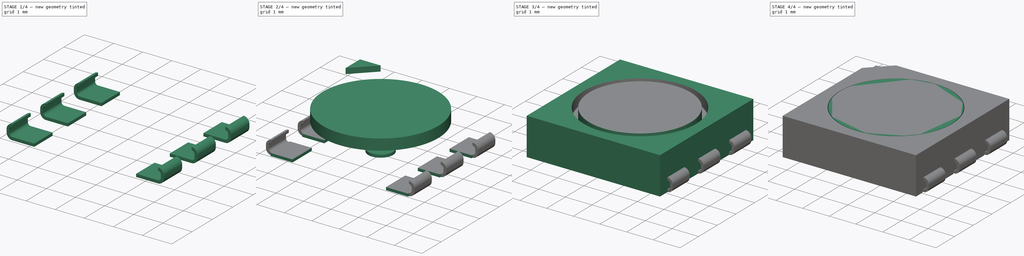
[diagram: build sequence overview — one tinted view per stage of 4, left to right]
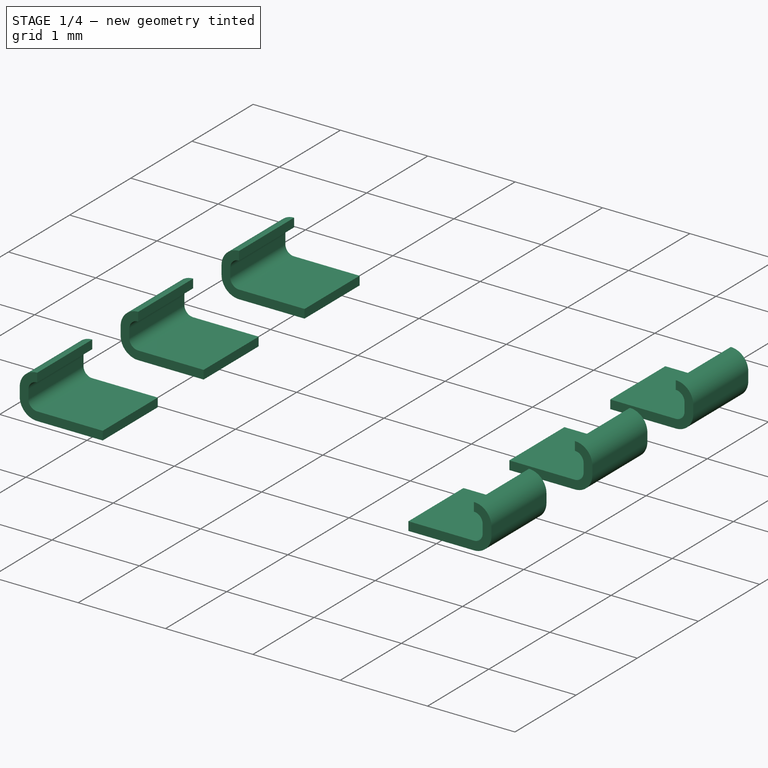
[diagram: stage 1 of 4 — iso view after this stage's code; geometry added in this stage tinted green]
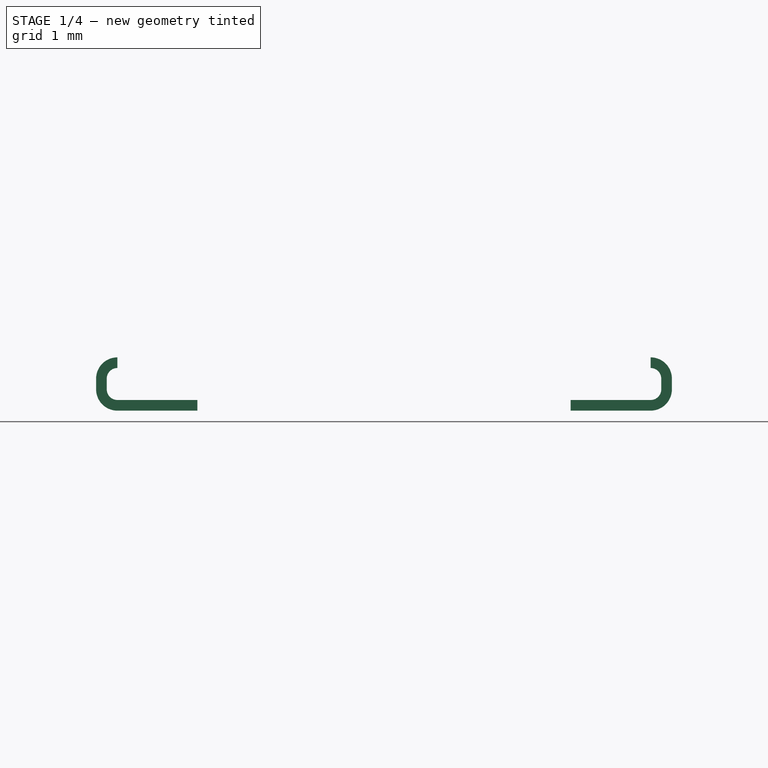
[diagram: stage 1 of 4 — front view after this stage's code; geometry added in this stage tinted green]
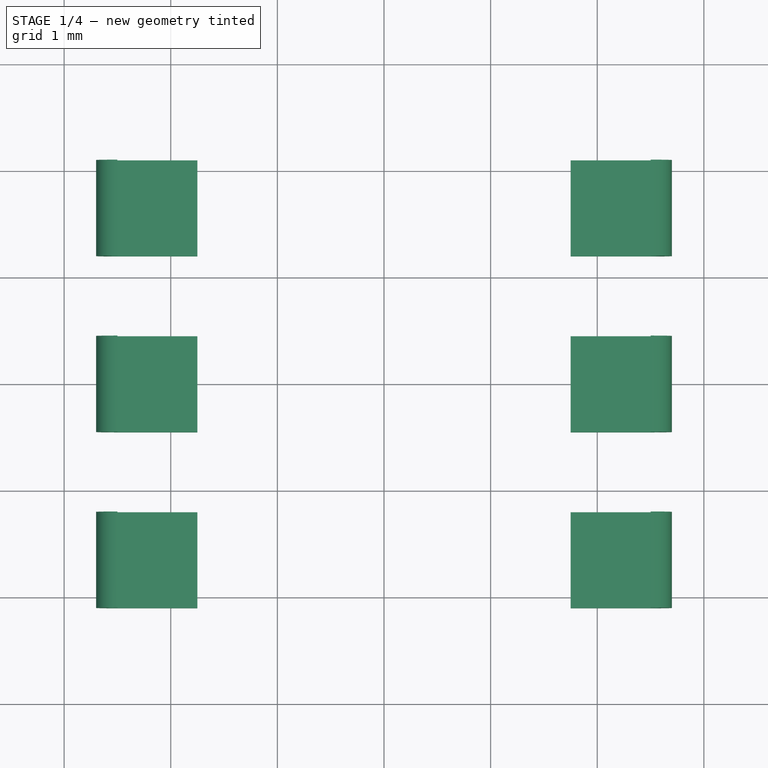
[diagram: stage 1 of 4 — top view after this stage's code; geometry added in this stage tinted green]
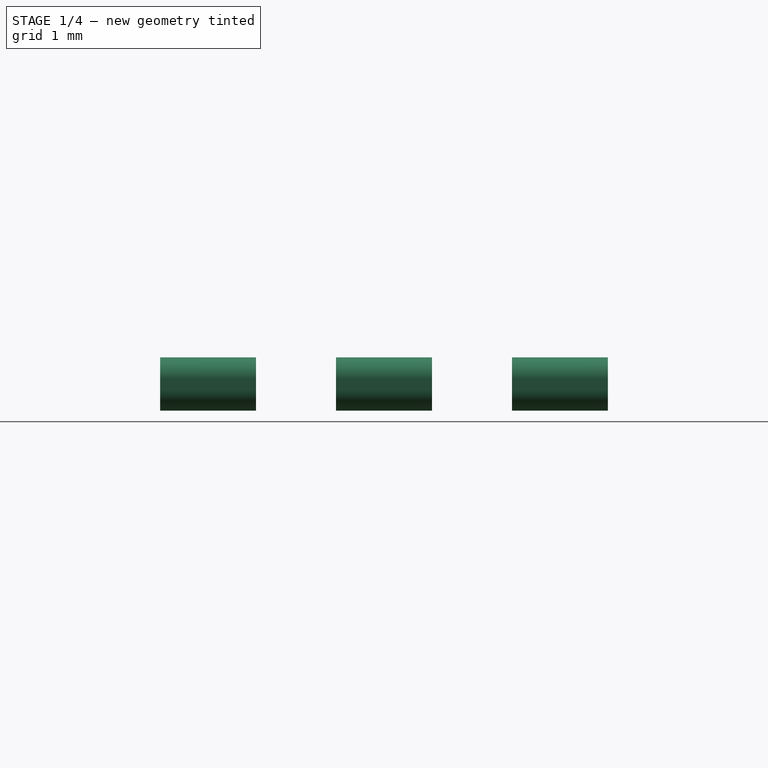
[diagram: stage 1 of 4 — right view after this stage's code; geometry added in this stage tinted green]
FCSTD DOCUMENT  (FreeCAD 0.21R32552 (Git))
Label: HD108-RGB5050
License: All rights reserved
LicenseURL: http://en.wikipedia.org/wiki/All_rights_reserved
objects: Sketcher::SketchObject×5, Part::Extrusion×4, Part::Cut×4, Part::FeaturePython×3, Part::Cylinder×2, Part::MultiFuse×1
note: 19 computed .brp shape members not serialized (recipe doc carries the construction recipe); baked Part::Feature solids carry a one-line shape summary decoded from their .brp

FEATURE [Sketcher::SketchObject] Sketch004  label="MetalTabSideSketch"
  FullyConstrained = true
  Placement = pos=(0,0,0) rot=(1,0,0;1.5708rad)
  expr: Constraints[10] = <<MasterSketch>>.Constraints.plastic_body_x_length / 2
  expr: Constraints[15] = <<MasterSketch>>.Constraints.metal_tab_side_extrusion
  expr: Constraints[33] = <<MasterSketch>>.Constraints.body_tab_length - 0.1 mm / 2
  sketch-geometry (10):
    g0: ArcOfCircle CenterX=-2.5 CenterY=0.3 CenterZ=0 NormalX=0 NormalY=0 NormalZ=1 AngleXU=0 Radius=0.2 StartAngle=1.5708 EndAngle=3.14159
    g1: LineSegment StartX=-2.7 StartY=0.3 StartZ=0 EndX=-2.7 EndY=0.2 EndZ=0
    g2: ArcOfCircle CenterX=-2.5 CenterY=0.2 CenterZ=0 NormalX=0 NormalY=0 NormalZ=1 AngleXU=0 Radius=0.2 StartAngle=3.14159 EndAngle=4.71239
    g3: LineSegment StartX=-2.5 StartY=0 StartZ=0 EndX=-1.75 EndY=0 EndZ=0
    g4: ArcOfCircle CenterX=-2.5 CenterY=0.3 CenterZ=0 NormalX=0 NormalY=0 NormalZ=1 AngleXU=0 Radius=0.1 StartAngle=1.5708 EndAngle=3.14159
    g5: LineSegment StartX=-2.5 StartY=0.4 StartZ=0 EndX=-2.5 EndY=0.5 EndZ=0
    g6: ArcOfCircle CenterX=-2.5 CenterY=0.2 CenterZ=0 NormalX=0 NormalY=0 NormalZ=1 AngleXU=0 Radius=0.1 StartAngle=3.14159 EndAngle=4.71239
    g7: LineSegment StartX=-2.6 StartY=0.2 StartZ=0 EndX=-2.6 EndY=0.3 EndZ=0
    g8: LineSegment StartX=-2.5 StartY=0.1 StartZ=0 EndX=-1.75 EndY=0.1 EndZ=0
    g9: LineSegment StartX=-1.75 StartY=0.1 StartZ=0 EndX=-1.75 EndY=0 EndZ=0
  constraints (35):
    c: Coincident(g1,g0)
    c: Vertical(g1)
    c: Coincident(g2,g1)
    c: Horizontal(g3)
    c: Vertical(g0,g0)
    c: Vertical(g2,g2)
    c: Coincident(g2,g3)
    c: Horizontal(g1,g2)
    c: Vertical(g2,g0)
    c: Horizontal(g3,g-1)
    c: DistanceX(g2,g-1) = 2.5
    c: DistanceY(g-1,g0) = 0.5
    c: Horizontal(g0,g0)
    c: Coincident(g4,g0)
    c: Radius(g4) = 0.1
    c: Radius(g0) = 0.2
    c: Horizontal(g4,g0)
    c: Vertical(g4,g0)
    c: Coincident(g5,g4)
    c: Coincident(g0,g5)
    c: Coincident(g6,g2)
    c: Vertical(g6,g2)
    c: Horizontal(g6,g2)
    c: Equal(g6,g4)
    c: Coincident(g7,g6)
    c: Coincident(g7,g4)
    c: Vertical(g7)
    c: Tangent(g7,g4)
    c: Coincident(g8,g6)
    c: Horizontal(g8)
    c: Coincident(g9,g8)
    c: Coincident(g9,g3)
    c: Vertical(g9)
    c: DistanceX(g8,g8) = 0.75
    c: DistanceY(g2,g0) = 0.5  'metal_tab_height'
FEATURE [Part::Extrusion] Extrude003  label="MetalTab"
  Base = -> Sketch004
  Dir = (0,-1,2e-16)
  DirMode = 2
  FaceMakerClass = Part::FaceMakerBullseye
  LengthFwd = 0.9
  LengthRev = 0
  Solid = true
  Symmetric = true
  expr: LengthFwd = <<MasterSketch>>.Constraints.metal_tab_width
FEATURE [Part::FeaturePython] Array  label="MetalTabsLeft"  # Draft array (typed FeaturePython)
  Angle = 360
  ArrayType = 0
  Axis = (0,0,1)
  Base = -> Extrude003
  Center = (0,0,0)
  Count = 3
  Fuse = true
  IntervalAxis = (0,0,0)
  IntervalX = (0,0,0)
  IntervalY = (0,1.65,0)
  IntervalZ = (0,0,100)
  NumberCircles = 3
  NumberPolar = 5
  NumberX = 1
  NumberY = 3
  NumberZ = 1
  Placement = pos=(0,-1.65,0) rot=(0,0,1;0rad)
  RadialDistance = 50
  Symmetry = 1
  TangentialDistance = 25
  expr: .IntervalY.y = Sketch.Constraints.pad_spacing / 2
  expr: .Placement.Base.y = Sketch.Constraints.pad_spacing / 2 * -1
FEATURE [Part::FeaturePython] Clone001  label="MetalRabsRight"  # Draft clone (typed FeaturePython)
  AttacherType = Attacher::AttachEngine3D
  Fuse = false
  Objects = -> [Array]
  Placement = pos=(0,1.65,0) rot=(0,0,1;3.14159rad)
  Scale = (1,1,1)
  expr: .Placement.Base.y = <<MetalTabsLeft>>.Placement.Base.y * -1
FEATURE [Part::MultiFuse] Fusion  label="MetalTabs"
  Shapes = -> [Clone001,Array]
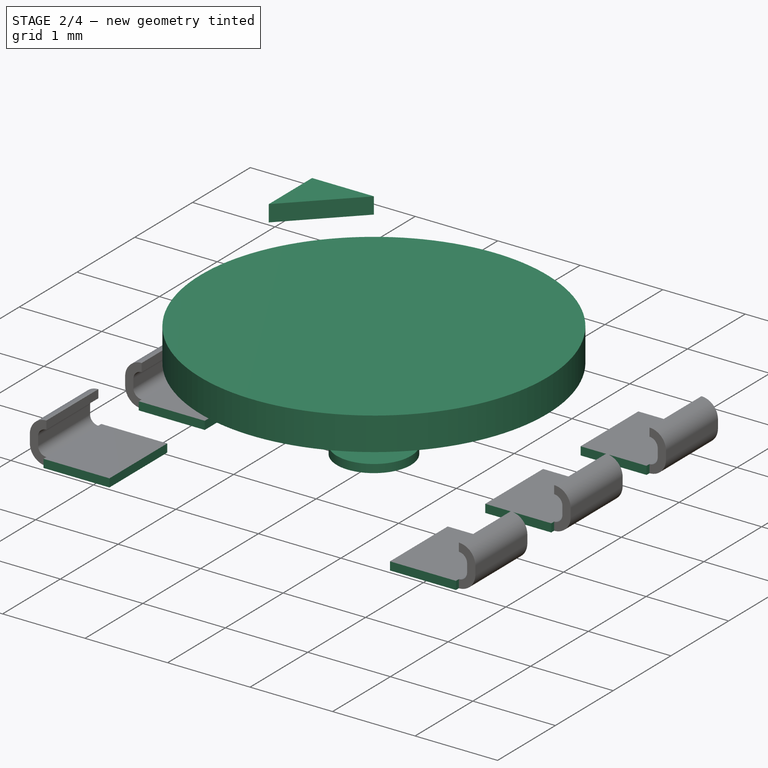
[diagram: stage 2 of 4 — iso view after this stage's code; geometry added in this stage tinted green]
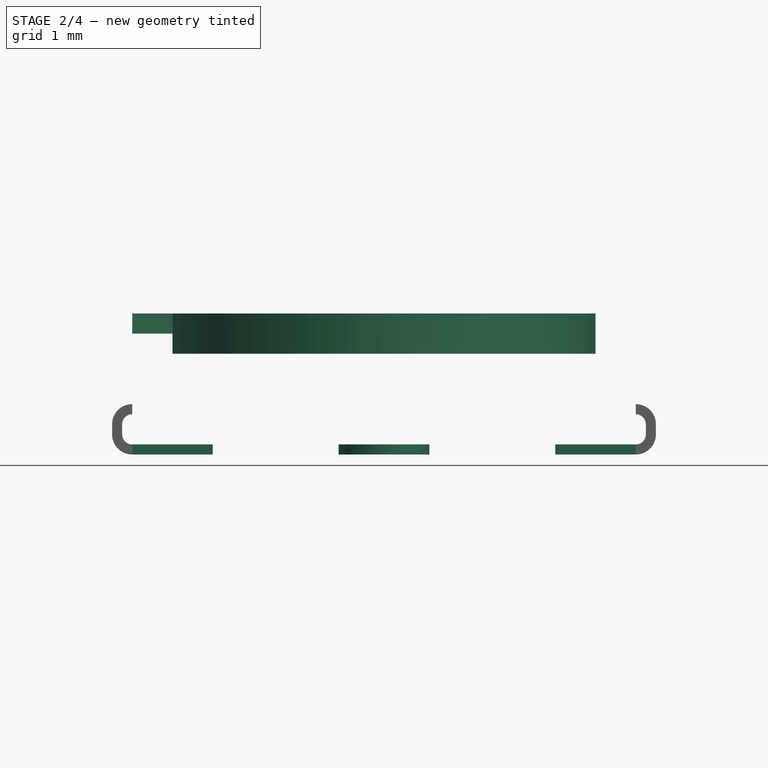
[diagram: stage 2 of 4 — front view after this stage's code; geometry added in this stage tinted green]
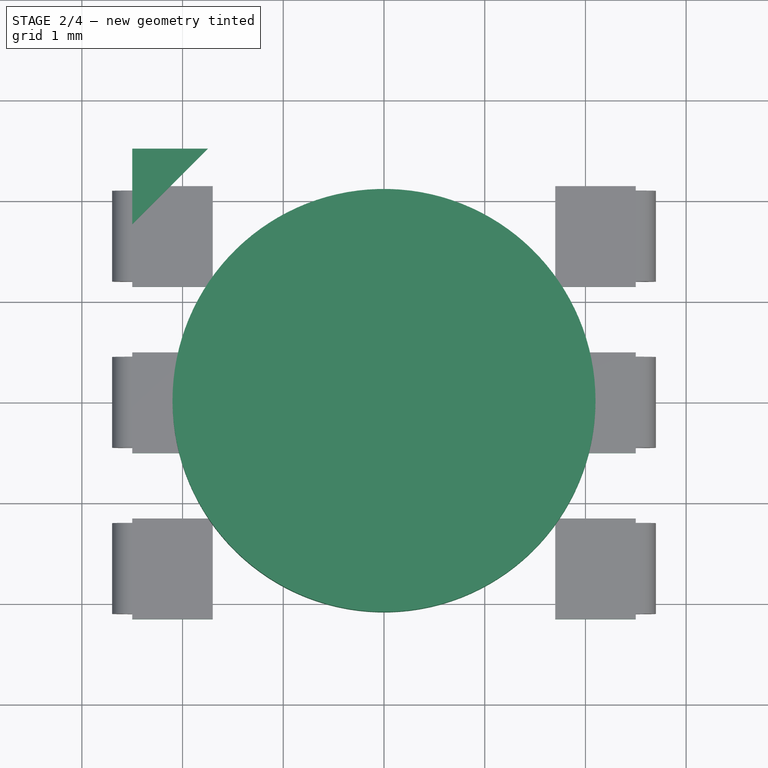
[diagram: stage 2 of 4 — top view after this stage's code; geometry added in this stage tinted green]
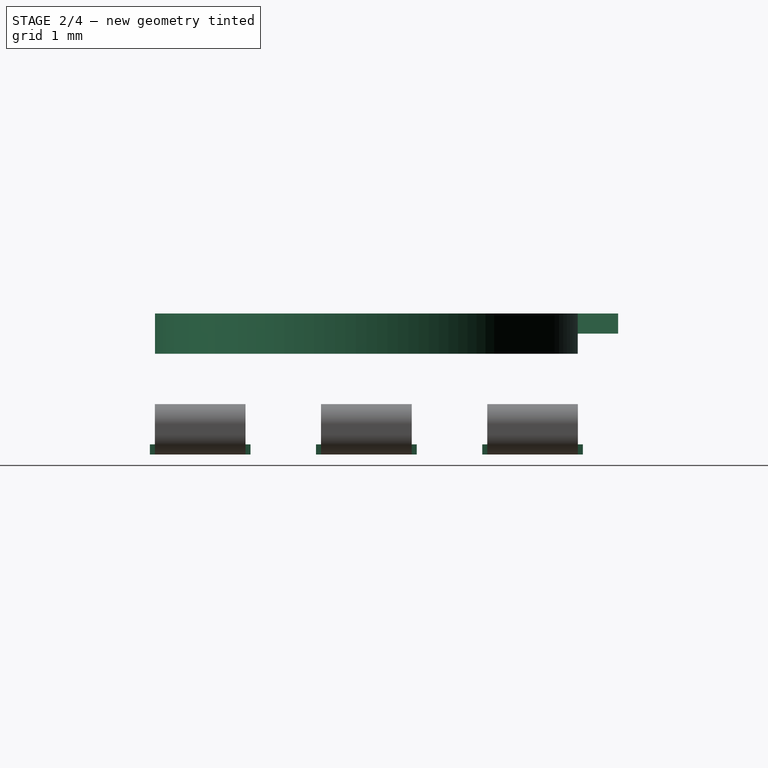
[diagram: stage 2 of 4 — right view after this stage's code; geometry added in this stage tinted green]
FEATURE [Part::Cylinder] Cylinder  label="LensHole"
  Angle = 360
  AttacherType = Attacher::AttachEngine3D
  FirstAngle = 0
  Height = 0.4
  Placement = pos=(0,0,1) rot=(0,0,1;0rad)
  Radius = 2.1
  SecondAngle = 0
  expr: .Placement.Base.z = <<MasterSketch>>.Constraints.plastic_body_z_lengthG - Height
  expr: Height = <<MasterSketch>>.Constraints.plastic_body_z_lengthG - 1 mm
  expr: Radius = Sketch.Constraints.lens_radius
FEATURE [Sketcher::SketchObject] Sketch002
  FullyConstrained = true
  expr: Constraints[4] = Sketch.Constraints.triangle_start_x
  expr: Constraints[6] = Sketch.Constraints.triangle_start_y
  expr: Constraints[7] = Sketch.Constraints.triangle_height
  sketch-geometry (3):
    g0: LineSegment StartX=-2.5 StartY=2.5 StartZ=0 EndX=-1.75 EndY=2.5 EndZ=0
    g1: LineSegment StartX=-1.75 StartY=2.5 StartZ=0 EndX=-2.5 EndY=1.75 EndZ=0
    g2: LineSegment StartX=-2.5 StartY=1.75 StartZ=0 EndX=-2.5 EndY=2.5 EndZ=0
  constraints (9):
    c: Horizontal(g0)
    c: Coincident(g1,g0)
    c: Coincident(g2,g1)
    c: Vertical(g2)
    c: DistanceX(g0,g-1) = 2.5
    c: Coincident(g2,g0)
    c: DistanceY(g-1,g0) = 2.5
    c: DistanceY(g2,g2) = 0.75
    c: Angle(g0,g1) = 0.785398
FEATURE [Part::Extrusion] Extrude001  label="TriangleNotch"
  Base = -> Sketch002
  Dir = (0,0,1)
  DirMode = 2
  FaceMakerClass = Part::FaceMakerBullseye
  LengthFwd = 0.2
  LengthRev = 0
  Placement = pos=(0,0,1.2) rot=(0,0,1;0rad)
  Solid = true
  Symmetric = false
  expr: .Placement.Base.z = <<MasterSketch>>.Constraints.plastic_body_z_lengthG - LengthFwd
FEATURE [Sketcher::SketchObject] Sketch003  label="BottomCutoutsSketch"
  FullyConstrained = true
  expr: .Constraints.x_length_from_mid = <<MasterSketch>>.Constraints.body_tab_extrusion_spacing / 2
  expr: Constraints[38] = Sketch.Constraints.pad_spacing / 2
  expr: Constraints[4] = <<MasterSketch>>.Constraints.body_tab_height
  expr: Constraints[74] = .Constraints.pad_spacing
  expr: Constraints[77] = .Constraints.x_length_from_mid
  expr: Constraints[79] = <<MetalTab>>.LengthFwd / 2
  expr: Constraints[7] = <<MasterSketch>>.Constraints.body_tab_length
  sketch-geometry (31):
    g0: LineSegment StartX=1.7 StartY=0.5 StartZ=0 EndX=1.7 EndY=-0.5 EndZ=0
    g1: GeomPoint X=1.7 Y=0 Z=0
    g2: LineSegment StartX=1.7 StartY=0.5 StartZ=0 EndX=2.5 EndY=0.5 EndZ=0
    g3: LineSegment StartX=1.7 StartY=-0.5 StartZ=0 EndX=2.5 EndY=-0.5 EndZ=0
    g4: LineSegment StartX=2.5 StartY=-0.5 StartZ=0 EndX=2.5 EndY=0.5 EndZ=0
    g5: LineSegment StartX=1.7 StartY=2.15 StartZ=0 EndX=1.7 EndY=1.15 EndZ=0
    g6: LineSegment StartX=1.7 StartY=1.15 StartZ=0 EndX=2.5 EndY=1.15 EndZ=0
    g7: LineSegment StartX=2.5 StartY=1.15 StartZ=0 EndX=2.5 EndY=2.15 EndZ=0
    g8: LineSegment StartX=2.5 StartY=2.15 StartZ=0 EndX=1.7 EndY=2.15 EndZ=0
    g9: GeomPoint X=2.1 Y=1.65 Z=0
    g10: LineSegment StartX=1.7 StartY=-1.15 StartZ=0 EndX=1.7 EndY=-2.15 EndZ=0
    g11: LineSegment StartX=1.7 StartY=-2.15 StartZ=0 EndX=2.5 EndY=-2.15 EndZ=0
    g12: LineSegment StartX=2.5 StartY=-2.15 StartZ=0 EndX=2.5 EndY=-1.15 EndZ=0
    g13: LineSegment StartX=2.5 StartY=-1.15 StartZ=0 EndX=1.7 EndY=-1.15 EndZ=0
    g14: GeomPoint X=2.1 Y=-1.65 Z=0
    g15: GeomPoint X=-2.5 Y=0 Z=0
    g16: LineSegment StartX=-2.5 StartY=0.5 StartZ=0 EndX=-1.7 EndY=0.5 EndZ=0
    g17: LineSegment StartX=-2.5 StartY=-0.5 StartZ=0 EndX=-1.7 EndY=-0.5 EndZ=0
    g18: LineSegment StartX=-1.7 StartY=-0.5 StartZ=0 EndX=-1.7 EndY=0.5 EndZ=0
    g19: LineSegment StartX=-2.5 StartY=1.15 StartZ=0 EndX=-1.7 EndY=1.15 EndZ=0
    g20: LineSegment StartX=-1.7 StartY=1.15 StartZ=0 EndX=-1.7 EndY=2.15 EndZ=0
    g21: LineSegment StartX=-1.7 StartY=2.15 StartZ=0 EndX=-2.5 EndY=2.15 EndZ=0
    g22: GeomPoint X=-2.1 Y=1.65 Z=0
    g23: LineSegment StartX=-2.5 StartY=-1.15 StartZ=0 EndX=-2.5 EndY=-2.15 EndZ=0
    g24: LineSegment StartX=-2.5 StartY=-2.15 StartZ=0 EndX=-1.7 EndY=-2.15 EndZ=0
    g25: LineSegment StartX=-1.7 StartY=-2.15 StartZ=0 EndX=-1.7 EndY=-1.15 EndZ=0
    g26: LineSegment StartX=-1.7 StartY=-1.15 StartZ=0 EndX=-2.5 EndY=-1.15 EndZ=0
    g27: GeomPoint X=-2.1 Y=-1.65 Z=0
    g28: LineSegment StartX=-2.5 StartY=2.15 StartZ=0 EndX=-2.5 EndY=1.15 EndZ=0
    g29: LineSegment StartX=-2.5 StartY=0.5 StartZ=0 EndX=-2.5 EndY=-0.5 EndZ=0
    g30: Circle CenterX=0 CenterY=0 CenterZ=0 NormalX=0 NormalY=0 NormalZ=1 AngleXU=0 Radius=0.45
  constraints (80):
    c: Vertical(g0)
    c: DistanceX(g-1,g0) = 1.7  'x_length_from_mid'
    c: Symmetric(g0,g0,g1)
    c: Horizontal(g1,g-1)
    c: DistanceY(g0,g0) = 1
    c: Coincident(g2,g0)
    c: Horizontal(g2)
    c: DistanceX(g2,g2) = 0.8
    c: Coincident(g3,g0)
    c: Horizontal(g3)
    c: Coincident(g4,g3)
    c: Coincident(g4,g2)
    c: Vertical(g4)
    c: Coincident(g5,g6)
    c: Coincident(g6,g7)
    c: Coincident(g7,g8)
    c: Coincident(g8,g5)
    c: Horizontal(g6)
    c: Horizontal(g8)
    c: Vertical(g5)
    c: Vertical(g7)
    c: Symmetric(g6,g5,g9)
    c: Coincident(g10,g11)
    c: Coincident(g11,g12)
    c: Coincident(g12,g13)
    c: Coincident(g13,g10)
    c: Horizontal(g11)
    c: Horizontal(g13)
    c: Vertical(g10)
    c: Vertical(g12)
    c: Symmetric(g11,g10,g14)
    c: Vertical(g10,g0)
    c: Vertical(g0,g5)
    c: Vertical(g6,g12)
    c: Vertical(g12,g3)
    c: Equal(g4,g12)
    c: Equal(g7,g4)
    c: DistanceY(g14,g9) = 3.3  'pad_spacing'
    c: DistanceY(g14,g-1) = 1.65
    c: Vertical(g29)
    c: Symmetric(g29,g29,g15)
    c: Equal(g0,g29) = 1
    c: Coincident(g16,g29)
    c: Horizontal(g16)
    c: Equal(g2,g16) = 1
    c: Coincident(g17,g29)
    c: Horizontal(g17)
    c: Coincident(g18,g17)
    c: Coincident(g18,g16)
    c: Vertical(g18)
    c: Coincident(g28,g19)
    c: Coincident(g19,g20)
    c: Coincident(g20,g21)
    c: Coincident(g21,g28)
    c: Horizontal(g19)
    c: Horizontal(g21)
    c: Vertical(g28)
    c: Vertical(g20)
    c: Symmetric(g19,g28,g22)
    c: Coincident(g23,g24)
    c: Coincident(g24,g25)
    c: Coincident(g25,g26)
    c: Coincident(g26,g23)
    c: Horizontal(g24)
    c: Horizontal(g26)
    c: Vertical(g23)
    c: Vertical(g25)
    c: Symmetric(g24,g23,g27)
    c: Vertical(g23,g29)
    c: Vertical(g29,g28)
    c: Vertical(g19,g25)
    c: Vertical(g25,g17)
    c: Equal(g18,g25)
    c: Equal(g20,g18)
    c: DistanceY(g27,g22) = 3.3
    c: Horizontal(g22,g9)
    c: Horizontal(g-1,g15)
    c: DistanceX(g17,g-1) = 1.7
    c: Coincident(g30,g-1)
    c: Radius(g30) = 0.45
FEATURE [Part::Extrusion] Extrude002  label="BottomCutouts"
  Base = -> Sketch003
  Dir = (0,0,1)
  DirMode = 2
  FaceMakerClass = Part::FaceMakerBullseye
  LengthFwd = 0.1
  LengthRev = 0
  Solid = true
  Symmetric = false
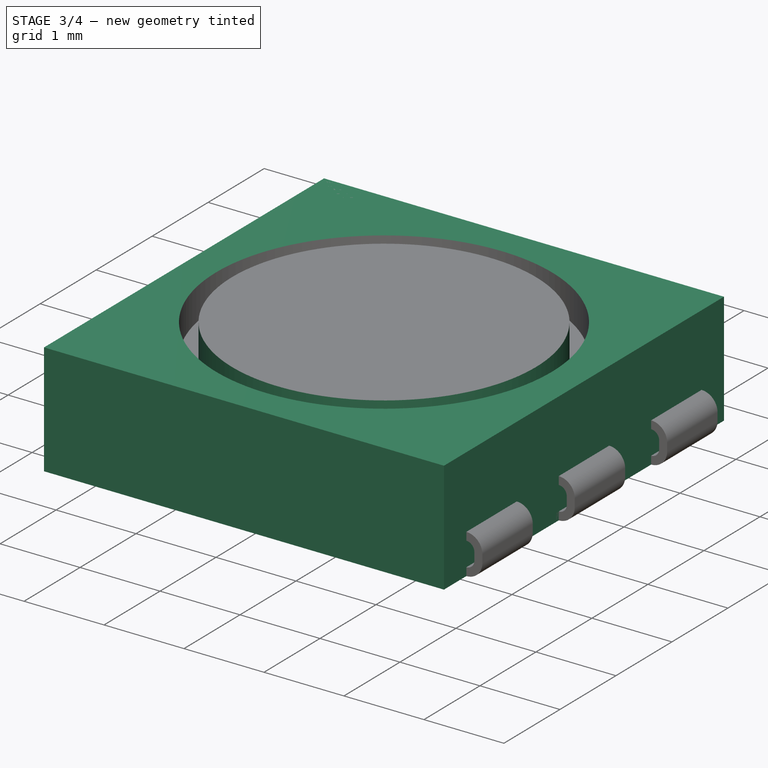
[diagram: stage 3 of 4 — iso view after this stage's code; geometry added in this stage tinted green]
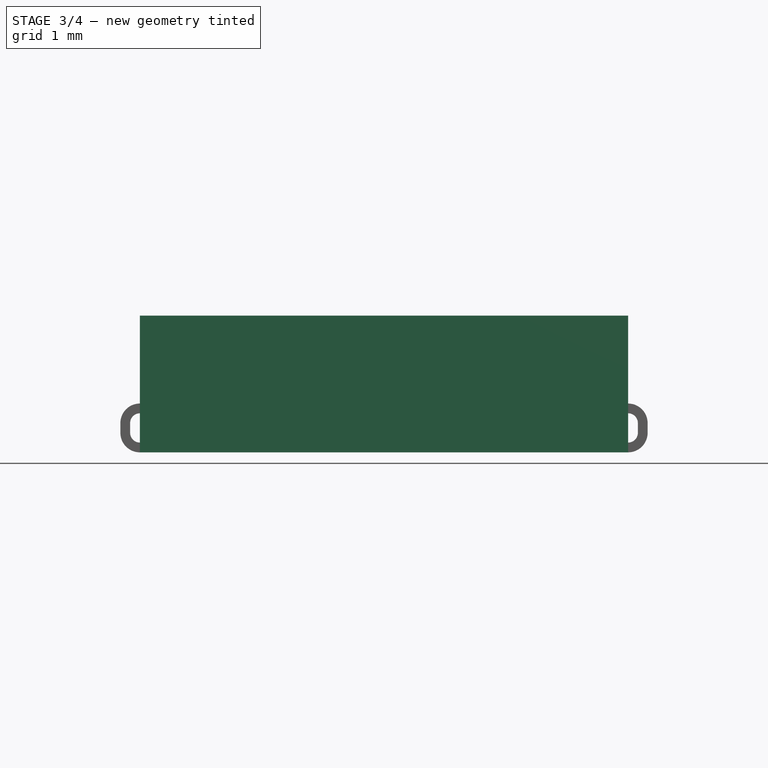
[diagram: stage 3 of 4 — front view after this stage's code; geometry added in this stage tinted green]
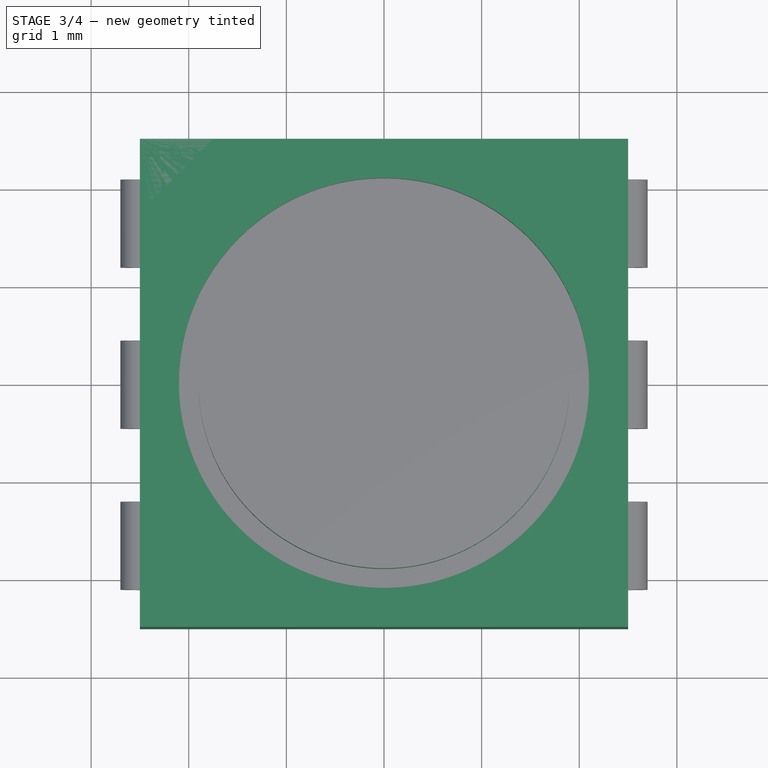
[diagram: stage 3 of 4 — top view after this stage's code; geometry added in this stage tinted green]
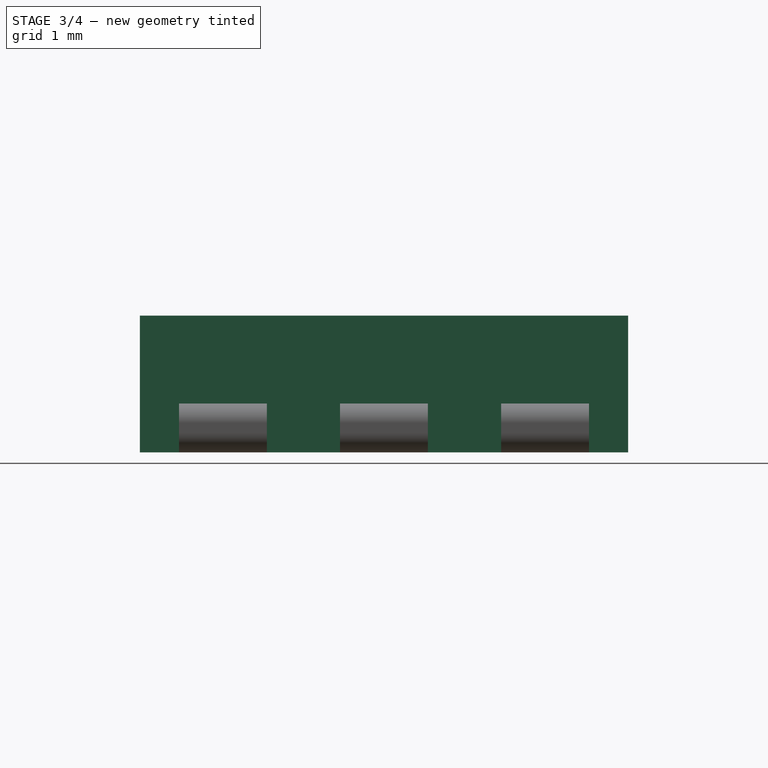
[diagram: stage 3 of 4 — right view after this stage's code; geometry added in this stage tinted green]
FEATURE [Sketcher::SketchObject] Sketch  label="MasterSketch"
  FullyConstrained = false
  expr: .Constraints.pad_spacing = 4.2 - 0.9
  expr: Constraints[109] = (.Constraints.pad_spacing - .Constraints.body_tab_height) / 2
  sketch-geometry (52):
    g0: LineSegment StartX=-2.5 StartY=2.5 StartZ=0 EndX=-2.5 EndY=-2.5 EndZ=0
    g1: LineSegment StartX=-2.5 StartY=-2.5 StartZ=0 EndX=2.5 EndY=-2.5 EndZ=0
    g2: LineSegment StartX=2.5 StartY=-2.5 StartZ=0 EndX=2.5 EndY=2.5 EndZ=0
    g3: LineSegment StartX=2.5 StartY=2.5 StartZ=0 EndX=-2.5 EndY=2.5 EndZ=0
    g4: GeomPoint X=0 Y=0 Z=0
    g5: LineSegment StartX=-2.5 StartY=0.45 StartZ=0 EndX=-2.7 EndY=0.45 EndZ=0
    g6: LineSegment StartX=-2.7 StartY=0.45 StartZ=0 EndX=-2.7 EndY=-0.45 EndZ=0
    g7: LineSegment StartX=-2.7 StartY=-0.45 StartZ=0 EndX=-2.5 EndY=-0.45 EndZ=0
    g8: GeomPoint X=-2.7 Y=0 Z=0
    g9: LineSegment StartX=-2.5 StartY=0.5 StartZ=0 EndX=-1.7 EndY=0.5 EndZ=0
    g10: LineSegment StartX=-1.7 StartY=0.5 StartZ=0 EndX=-1.7 EndY=-0.5 EndZ=0
    g11: LineSegment StartX=-1.7 StartY=-0.5 StartZ=0 EndX=-2.5 EndY=-0.5 EndZ=0
    g12: GeomPoint X=-2.7 Y=0 Z=0
    g13: GeomPoint X=-1.7 Y=0 Z=0
    g14: GeomPoint X=-1.7 Y=0 Z=0
    g15: LineSegment StartX=1.7 StartY=0.5 StartZ=0 EndX=2.5 EndY=0.5 EndZ=0
    g16: LineSegment StartX=1.7 StartY=0.5 StartZ=0 EndX=1.7 EndY=-0.5 EndZ=0
    g17: LineSegment StartX=1.7 StartY=-0.5 StartZ=0 EndX=2.5 EndY=-0.5 EndZ=0
    g18: GeomPoint X=1.7 Y=0 Z=0
    g19: GeomPoint X=1.7 Y=0 Z=0
    g20: LineSegment StartX=4.43713 StartY=2.5 StartZ=0 EndX=5.83713 EndY=2.5 EndZ=0
    g21: LineSegment StartX=5.83713 StartY=2.5 StartZ=0 EndX=5.83713 EndY=-2.5 EndZ=0
    g22: LineSegment StartX=5.83713 StartY=-2.5 StartZ=0 EndX=4.43713 EndY=-2.5 EndZ=0
    g23: LineSegment StartX=4.43713 StartY=-2.5 StartZ=0 EndX=4.43713 EndY=1.31081 EndZ=0
    g24: LineSegment StartX=4.44488 StartY=1.97987 StartZ=0 EndX=4.54488 EndY=1.97987 EndZ=0
    g25: LineSegment StartX=4.54488 StartY=1.97987 StartZ=0 EndX=4.54488 EndY=1.31081 EndZ=0
    g26: LineSegment StartX=4.54488 StartY=1.31081 StartZ=0 EndX=4.43713 EndY=1.31081 EndZ=0
    g27: LineSegment StartX=-5.19965 StartY=-2.5 StartZ=0 EndX=-5.19965 EndY=2.5 EndZ=0
    g28: LineSegment StartX=-5.19965 StartY=2.5 StartZ=0 EndX=-10.1997 EndY=2.5 EndZ=0
    g29: LineSegment StartX=-10.1997 StartY=2.5 StartZ=0 EndX=-10.1997 EndY=-2.5 EndZ=0
    g30: LineSegment StartX=-10.1997 StartY=-2.5 StartZ=0 EndX=-5.19965 EndY=-2.5 EndZ=0
    g31: GeomPoint X=-7.69965 Y=0 Z=0
    g32: LineSegment StartX=-9.44965 StartY=2.5 StartZ=0 EndX=-10.1997 EndY=1.75 EndZ=0
    g33: Circle CenterX=-7.69965 CenterY=0 CenterZ=0 NormalX=0 NormalY=0 NormalZ=1 AngleXU=0 Radius=2.1
    g34: Circle CenterX=-7.69965 CenterY=0 CenterZ=0 NormalX=0 NormalY=0 NormalZ=1 AngleXU=0 Radius=1.9
    g35: GeomPoint X=2.5 Y=-1.65 Z=0
    g36: GeomPoint X=2.5 Y=1.65 Z=0
    g37: LineSegment StartX=1.7 StartY=-1.15 StartZ=0 EndX=1.7 EndY=-2.15 EndZ=0
    g38: LineSegment StartX=1.7 StartY=-1.15 StartZ=0 EndX=2.5 EndY=-1.15 EndZ=0
    g39: LineSegment StartX=1.7 StartY=-2.15 StartZ=0 EndX=2.5 EndY=-2.15 EndZ=0
    g40: GeomPoint X=1.7 Y=-1.65 Z=0
    g41: LineSegment StartX=2.5 StartY=2.15 StartZ=0 EndX=1.7 EndY=2.15 EndZ=0
    g42: LineSegment StartX=1.7 StartY=2.15 StartZ=0 EndX=1.7 EndY=1.15 EndZ=0
    g43: LineSegment StartX=1.7 StartY=1.15 StartZ=0 EndX=2.5 EndY=1.15 EndZ=0
    g44: GeomPoint X=1.7 Y=1.65 Z=0
    g45: GeomPoint X=-7.69965 Y=2.5 Z=0
    g46: LineSegment StartX=4.44488 StartY=1.97987 StartZ=0 EndX=4.43713 EndY=2.5 EndZ=0
    g47: LineSegment StartX=4.54488 StartY=1.9383 StartZ=0 EndX=4.34488 EndY=1.9383 EndZ=0
    g48: LineSegment StartX=4.34488 StartY=1.9383 StartZ=0 EndX=4.34488 EndY=1.35086 EndZ=0
    g49: LineSegment StartX=4.34488 StartY=1.35086 StartZ=0 EndX=4.54488 EndY=1.35086 EndZ=0
    g50: LineSegment StartX=4.54488 StartY=1.35086 StartZ=0 EndX=4.54488 EndY=1.9383 EndZ=0
    g51: LineSegment StartX=-2.7 StartY=0.45 StartZ=0 EndX=-1.875 EndY=0.45 EndZ=0
  constraints (131):
    c: Coincident(g0,g1)
    c: Coincident(g1,g2)
    c: Coincident(g2,g3)
    c: Coincident(g3,g0)
    c: Horizontal(g1)
    c: Horizontal(g3)
    c: Vertical(g0)
    c: Vertical(g2)
    c: Symmetric(g1,g0,g4)
    c: Coincident(g4,g-1)
    c: PointOnObject(g5,g0)
    c: Horizontal(g5)
    c: Coincident(g6,g5)
    c: Vertical(g6)
    c: Coincident(g7,g6)
    c: PointOnObject(g7,g0)
    c: Horizontal(g7)
    c: DistanceY(g0,g0) = 5  'plastic_body_y_length'
    c: DistanceX(g3,g3) = 5  'plastic_body_x_length'
    c: DistanceY(g6,g6) = 0.9  'metal_tab_width'
    c: Symmetric(g6,g6,g8)
    c: DistanceX(g5,g5) = 0.2  'metal_tab_side_extrusion'
    c: PointOnObject(g9,g0)
    c: Horizontal(g9)
    c: Coincident(g10,g9)
    c: Vertical(g10)
    c: Coincident(g11,g10)
    c: PointOnObject(g11,g0)
    c: Horizontal(g11)
    c: DistanceY(g10,g10) = 1  'body_tab_height'
    c: DistanceX(g9,g9) = 0.8  'body_tab_length'
    c: PointOnObject(g12,g-1)
    c: Coincident(g8,g12)
    c: PointOnObject(g13,g-1)
    c: Symmetric(g10,g10,g14)
    c: Coincident(g13,g14)
    c: PointOnObject(g15,g2)
    c: Horizontal(g15)
    c: Coincident(g16,g15)
    c: Vertical(g16)
    c: Coincident(g17,g16)
    c: PointOnObject(g17,g2)
    c: Horizontal(g17)
    c: PointOnObject(g18,g-1)
    c: Symmetric(g16,g16,g19)
    c: Coincident(g19,g18)
    c: Equal(g9,g15)
    c: Equal(g10,g16)
    c: DistanceX(g9,g15) = 3.4  'body_tab_extrusion_spacing'
    c: Coincident(g20,g21)
    c: Coincident(g21,g22)
    c: Coincident(g22,g23)
    c: Coincident(g46,g20)
    c: Horizontal(g20)
    c: Horizontal(g22)
    c: Vertical(g21)
    c: Vertical(g23)
    c: DistanceX(g20,g20) = 1.4  'plastic_body_z_lengthG'
    c: Horizontal(g2,g20)
    c: Horizontal(g22,g1)
    c: Horizontal(g24)
    c: Coincident(g25,g24)
    c: Vertical(g25)
    c: Coincident(g26,g25)
    c: Horizontal(g26)
    c: Coincident(g27,g28)
    c: Coincident(g28,g29)
    c: Coincident(g29,g30)
    c: Coincident(g30,g27)
    c: Horizontal(g28)
    c: Horizontal(g30)
    c: Vertical(g27)
    c: Vertical(g29)
    c: Symmetric(g28,g27,g31)
    c: PointOnObject(g31,g-1)
    c: Equal(g28,g3)
    c: Equal(g27,g0)
    c: PointOnObject(g32,g28)
    c: PointOnObject(g32,g29)
    c: DistanceY(g32,g28) = 0.75  'triangle_height'
    c: Coincident(g33,g31)
    c: Radius(g33) = 2.1  'lens_radius'
    c: Coincident(g34,g31)
    c: Radius(g34) = 1.9  'peek_hole'
    c: PointOnObject(g35,g2)
    c: PointOnObject(g36,g2)
    c: DistanceY(g35,g36) = 3.3  'pad_spacing'
    c: Vertical(g37)
    c: Vertical(g37,g16)
    c: Coincident(g38,g37)
    c: PointOnObject(g38,g2)
    c: Horizontal(g38)
    c: Coincident(g39,g37)
    c: PointOnObject(g39,g2)
    c: Horizontal(g39)
    c: Equal(g37,g16)
    c: Symmetric(g37,g37,g40)
    c: Horizontal(g40,g35)
    c: PointOnObject(g41,g2)
    c: Horizontal(g41)
    c: Coincident(g42,g41)
    c: Vertical(g42)
    c: Coincident(g43,g42)
    c: PointOnObject(g43,g2)
    c: Horizontal(g43)
    c: Symmetric(g42,g42,g44)
    c: Horizontal(g44,g36)
    c: Equal(g42,g16)
    c: Vertical(g42,g15)
    c: DistanceY(g37,g4) = 1.15
    c: PointOnObject(g45,g28)
    c: Vertical(g45,g34)
    c: DistanceX(g28,g34) = 2.5  'triangle_start_x'
    c: DistanceY(g28) = 2.5  'triangle_start_y'
    c: Coincident(g23,g26)
    c: Coincident(g46,g24)
    c: DistanceX(g24,g24) = 0.1
    c: Coincident(g47,g48)
    c: Coincident(g48,g49)
    c: Coincident(g49,g50)
    c: Coincident(g50,g47)
    c: Horizontal(g47)
    c: Horizontal(g49)
    c: Vertical(g48)
    c: Vertical(g50)
    c: PointOnObject(g47,g25)
    c: DistanceX(g47,g24) = 0.1
    c: DistanceX(g47,g47) = 0.2  'contact_height'
    c: Coincident(g51,g5)
    c: Horizontal(g51)
    c: DistanceX(g51,g51) = 0.825
FEATURE [Sketcher::SketchObject] Sketch001  label="MainBodySketch"
  FullyConstrained = true
  expr: Constraints[10] = <<MasterSketch>>.Constraints.plastic_body_x_length
  expr: Constraints[11] = <<MasterSketch>>.Constraints.plastic_body_y_length
  sketch-geometry (5):
    g0: LineSegment StartX=-2.5 StartY=2.5 StartZ=0 EndX=-2.5 EndY=-2.5 EndZ=0
    g1: LineSegment StartX=-2.5 StartY=-2.5 StartZ=0 EndX=2.5 EndY=-2.5 EndZ=0
    g2: LineSegment StartX=2.5 StartY=-2.5 StartZ=0 EndX=2.5 EndY=2.5 EndZ=0
    g3: LineSegment StartX=2.5 StartY=2.5 StartZ=0 EndX=-2.5 EndY=2.5 EndZ=0
    g4: GeomPoint X=0 Y=0 Z=0
  constraints (12):
    c: Coincident(g0,g1)
    c: Coincident(g1,g2)
    c: Coincident(g2,g3)
    c: Coincident(g3,g0)
    c: Horizontal(g1)
    c: Horizontal(g3)
    c: Vertical(g0)
    c: Vertical(g2)
    c: Symmetric(g1,g0,g4)
    c: Coincident(g4,g-1)
    c: DistanceX(g1,g1) = 5
    c: DistanceY(g0,g0) = 5
FEATURE [Part::Extrusion] Extrude  label="MainBody"
  Base = -> Sketch001
  Dir = (0,0,1)
  DirMode = 2
  FaceMakerClass = Part::FaceMakerBullseye
  LengthFwd = 1.4
  LengthRev = 0
  Solid = true
  Symmetric = false
  expr: LengthFwd = <<MasterSketch>>.Constraints.plastic_body_z_lengthG
FEATURE [Part::Cylinder] Cylinder001  label="PeekHole"
  Angle = 360
  AttacherType = Attacher::AttachEngine3D
  FirstAngle = 0
  Height = 0.8
  Placement = pos=(0,0,0.6) rot=(0,0,1;0rad)
  Radius = 1.9
  SecondAngle = 0
  expr: .Placement.Base.z = <<MasterSketch>>.Constraints.plastic_body_z_lengthG - Height
  expr: Height = <<MasterSketch>>.Constraints.plastic_body_z_lengthG - 0.6 mm
  expr: Radius = Sketch.Constraints.peek_hole
FEATURE [Part::Cut] Cut
  Base = -> Extrude
  Tool = -> Cylinder
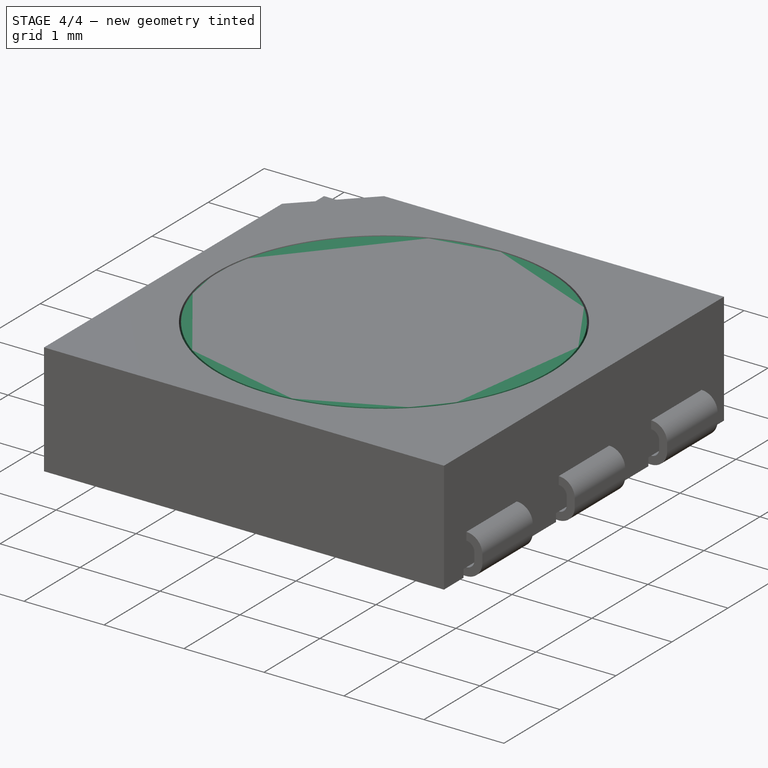
[diagram: stage 4 of 4 — iso view after this stage's code; geometry added in this stage tinted green]
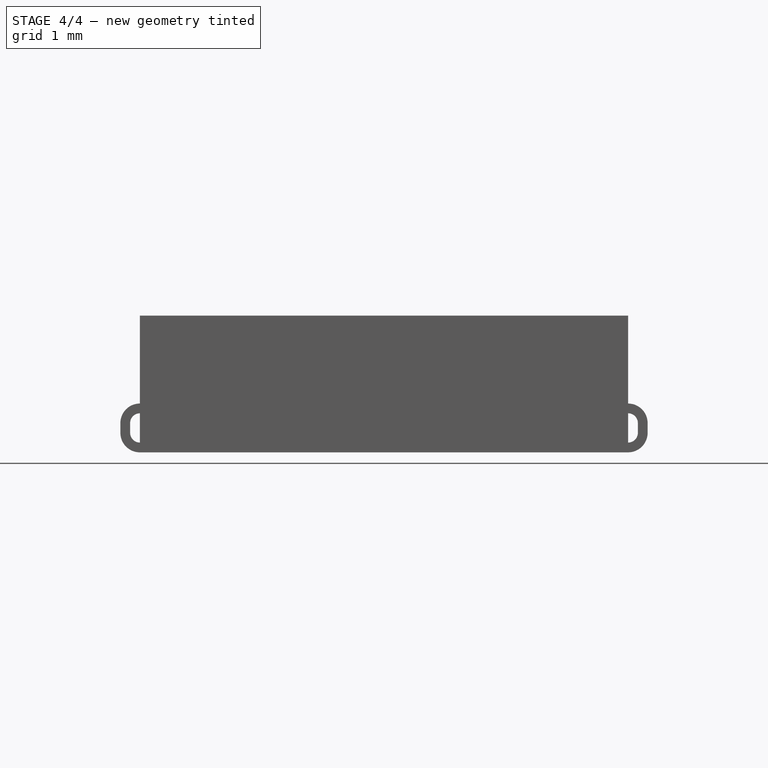
[diagram: stage 4 of 4 — front view after this stage's code; geometry added in this stage tinted green]
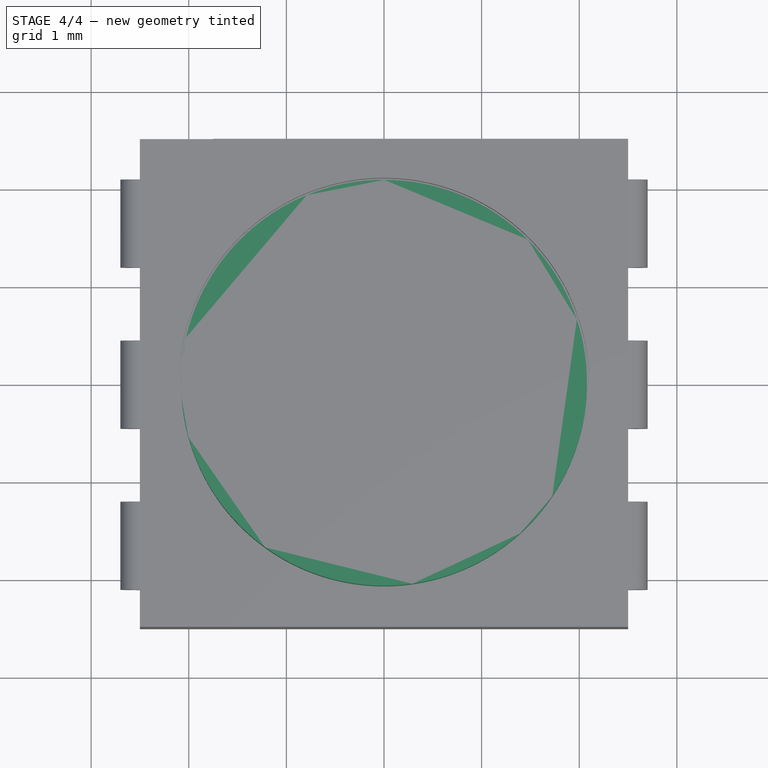
[diagram: stage 4 of 4 — top view after this stage's code; geometry added in this stage tinted green]
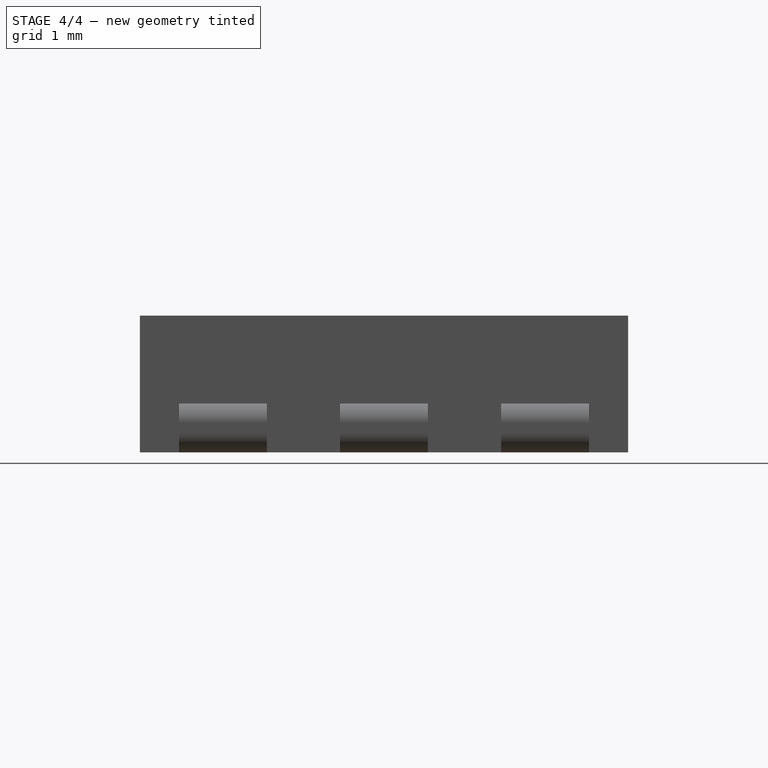
[diagram: stage 4 of 4 — right view after this stage's code; geometry added in this stage tinted green]
FEATURE [Part::Cut] Cut001
  Base = -> Cut
  Tool = -> Cylinder001
FEATURE [Part::FeaturePython] Clone  label="Lens"  # Draft clone (typed FeaturePython)
  AttacherType = Attacher::AttachEngine3D
  Fuse = false
  Objects = -> [Cylinder]
  Placement = pos=(0,0,1) rot=(0,0,1;0rad)
  Scale = (0.99,0.99,1)
FEATURE [Part::Cut] Cut002
  Base = -> Cut001
  Tool = -> Extrude001
FEATURE [Part::Cut] Cut003  label="PlasticBody"
  Base = -> Cut002
  Tool = -> Extrude002
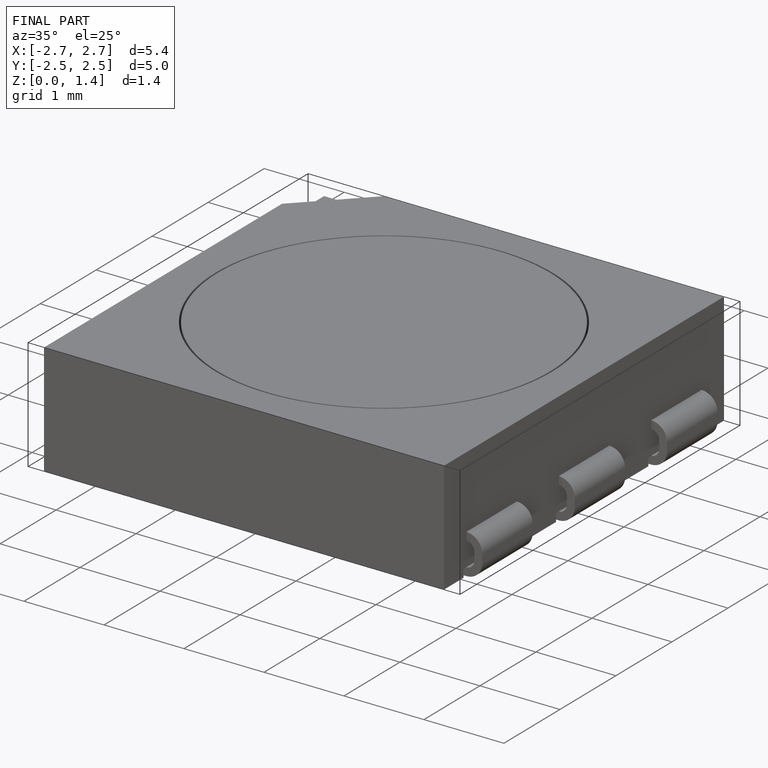
[diagram: finished part — iso view with bounding-box wireframe]
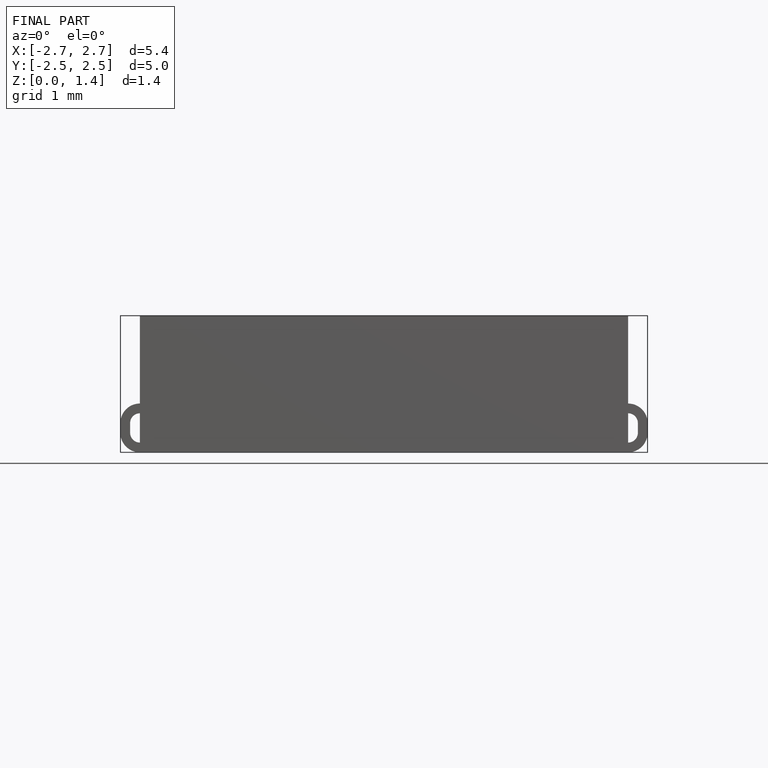
[diagram: finished part — front view with bounding-box wireframe]
